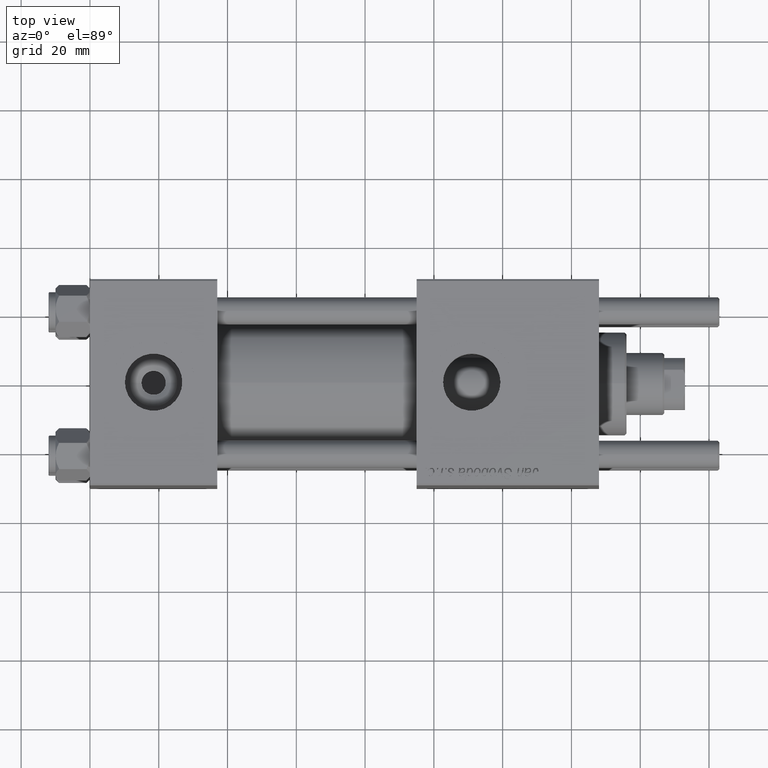
[diagram: clean part render]
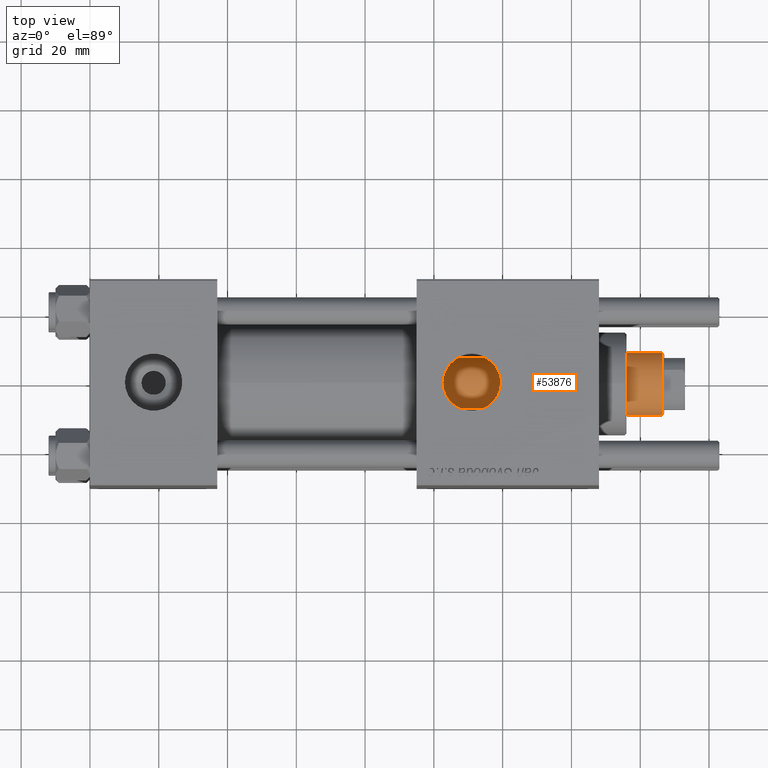
[diagram: same view with one face highlighted and labeled with its STEP entity id]
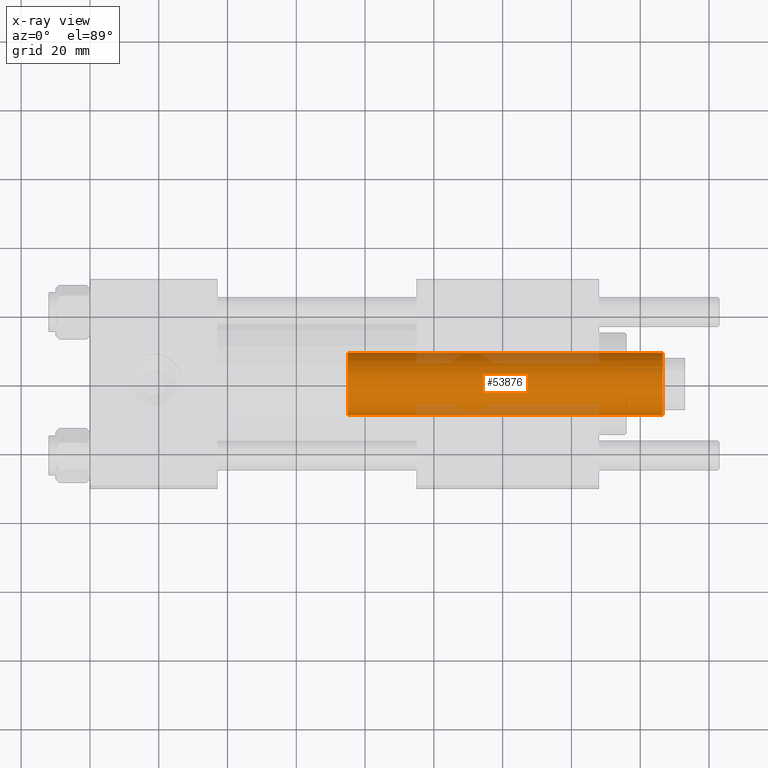
[diagram: x-ray of the same camera — body ghosted, the highlighted face saturated]
A machine part, top view. The second image highlights one B-rep face of the part: STEP entity #53876.
The next image is the same camera in x-ray: the body ghosted, the highlighted face saturated — about 18% of this face is hidden behind the body in this view.
In plain terms, the highlighted cylindrical surface (edge-blend (fillet) strip) has radius 9 mm, axis along (-1, 0, 0).
Its self-contained STEP definition (entity closure, byte-faithful):
#864 = ORIENTED_EDGE ( 'NONE', *, *, #26140, .T. ) ;
#1327 = FACE_OUTER_BOUND ( 'NONE', #4870, .T. ) ;
#1383 = VERTEX_POINT ( 'NONE', #15767 ) ;
#1894 = LINE ( 'NONE', #19397, #22690 ) ;
#1934 = EDGE_CURVE ( 'NONE', #48683, #41639, #41769, .T. ) ;
#3930 = ORIENTED_EDGE ( 'NONE', *, *, #36991, .T. ) ;
#4870 = EDGE_LOOP ( 'NONE', ( #11636, #864, #3930, #27453 ) ) ;
#5977 = LINE ( 'NONE', #49931, #48162 ) ;
#7601 = DIRECTION ( 'NONE',  ( 0.000000000000000000, 0.000000000000000000, 1.000000000000000000 ) ) ;
#10798 = CYLINDRICAL_SURFACE ( 'NONE', #53949, 9.000000000000000000 ) ;
#11636 = ORIENTED_EDGE ( 'NONE', *, *, #22702, .F. ) ;
#12807 = CARTESIAN_POINT ( 'NONE',  ( 0.000000000000000000, 0.000000000000000000, 129.5000000000000000 ) ) ;
#14855 = DIRECTION ( 'NONE',  ( -0.000000000000000000, -0.000000000000000000, -1.000000000000000000 ) ) ;
#15065 = CARTESIAN_POINT ( 'NONE',  ( 0.000000000000000000, 0.000000000000000000, 38.00000000000000000 ) ) ;
#15612 = CARTESIAN_POINT ( 'NONE',  ( -9.000000000000000000, 0.000000000000000000, 38.00000000000000000 ) ) ;
#15767 = CARTESIAN_POINT ( 'NONE',  ( 9.000000000000000000, 1.102182119232617714E-15, 129.5000000000000000 ) ) ;
#19397 = CARTESIAN_POINT ( 'NONE',  ( -9.000000000000000000, 0.000000000000000000, 130.0000000000000000 ) ) ;
#19477 = CARTESIAN_POINT ( 'NONE',  ( 9.000000000000000000, 1.102182119232617714E-15, 38.00000000000000000 ) ) ;
#19691 = CARTESIAN_POINT ( 'NONE',  ( 0.000000000000000000, 0.000000000000000000, 130.0000000000000000 ) ) ;
#22690 = VECTOR ( 'NONE', #54465, 1000.000000000000000 ) ;
#22702 = EDGE_CURVE ( 'NONE', #1383, #41639, #5977, .T. ) ;
#26140 = EDGE_CURVE ( 'NONE', #1383, #34193, #36151, .T. ) ;
#27453 = ORIENTED_EDGE ( 'NONE', *, *, #1934, .T. ) ;
#27974 = AXIS2_PLACEMENT_3D ( 'NONE', #15065, #7601, #34281 ) ;
#34193 = VERTEX_POINT ( 'NONE', #52007 ) ;
#34281 = DIRECTION ( 'NONE',  ( 1.000000000000000000, 0.000000000000000000, 0.000000000000000000 ) ) ;
#35256 = AXIS2_PLACEMENT_3D ( 'NONE', #12807, #47868, #47589 ) ;
#36151 = CIRCLE ( 'NONE', #35256, 9.000000000000000000 ) ;
#36991 = EDGE_CURVE ( 'NONE', #34193, #48683, #1894, .T. ) ;
#37211 = DIRECTION ( 'NONE',  ( -0.000000000000000000, -0.000000000000000000, -1.000000000000000000 ) ) ;
#41639 = VERTEX_POINT ( 'NONE', #19477 ) ;
#41769 = CIRCLE ( 'NONE', #27974, 9.000000000000000000 ) ;
#47589 = DIRECTION ( 'NONE',  ( 1.000000000000000000, 0.000000000000000000, 0.000000000000000000 ) ) ;
#47868 = DIRECTION ( 'NONE',  ( 0.000000000000000000, 0.000000000000000000, -1.000000000000000000 ) ) ;
#48162 = VECTOR ( 'NONE', #14855, 1000.000000000000000 ) ;
#48683 = VERTEX_POINT ( 'NONE', #15612 ) ;
#49931 = CARTESIAN_POINT ( 'NONE',  ( 9.000000000000000000, 1.102182119232617714E-15, 130.0000000000000000 ) ) ;
#52007 = CARTESIAN_POINT ( 'NONE',  ( -9.000000000000000000, 0.000000000000000000, 129.5000000000000000 ) ) ;
#53876 = ADVANCED_FACE ( 'NONE', ( #1327 ), #10798, .T. ) ;
#53949 = AXIS2_PLACEMENT_3D ( 'NONE', #19691, #37211, #54760 ) ;
#54465 = DIRECTION ( 'NONE',  ( -0.000000000000000000, -0.000000000000000000, -1.000000000000000000 ) ) ;
#54760 = DIRECTION ( 'NONE',  ( -1.000000000000000000, 0.000000000000000000, 0.000000000000000000 ) ) ;